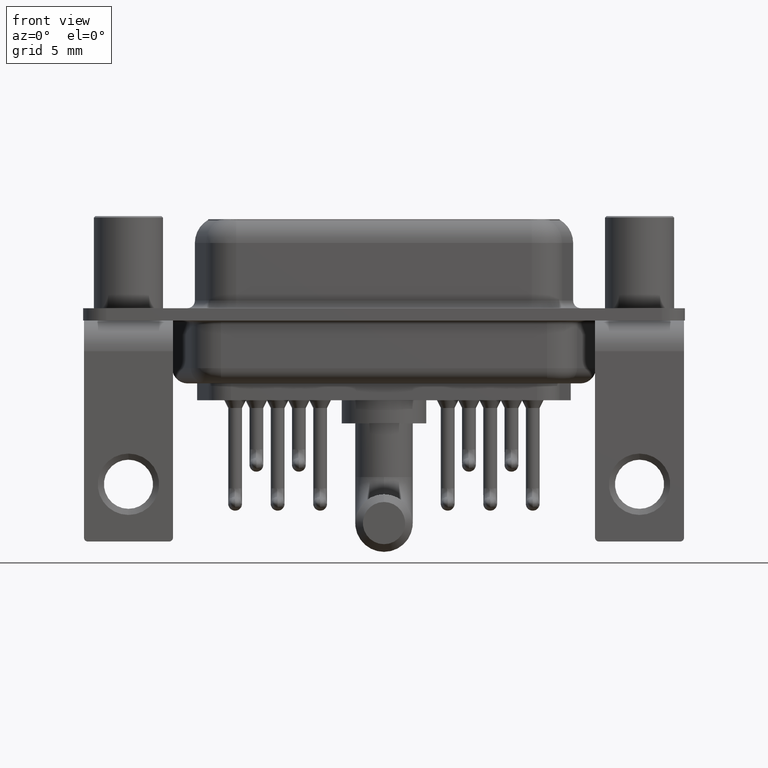
[diagram: clean part render]
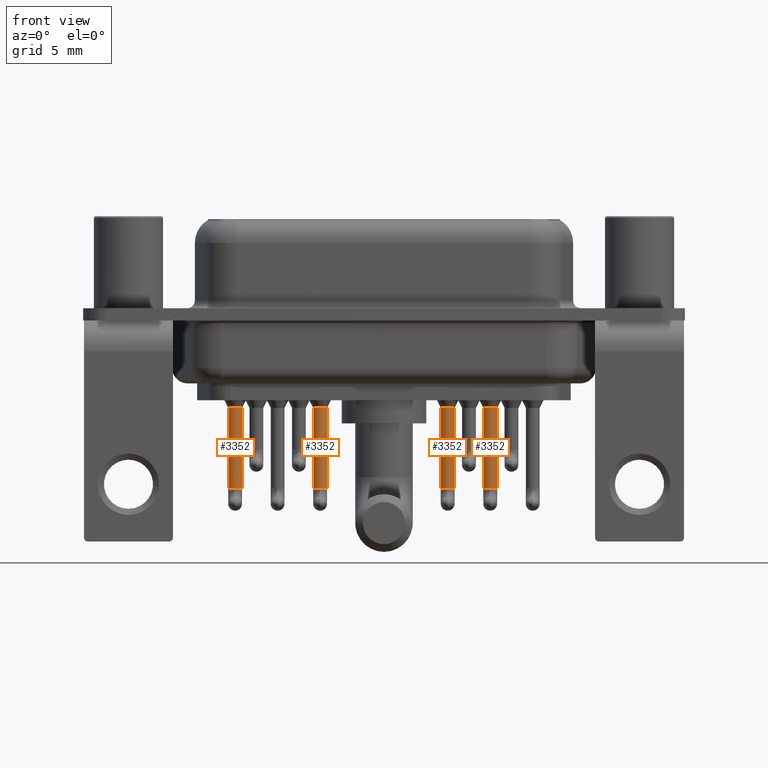
[diagram: same view with one multi-face feature highlighted, each face labeled with its STEP entity id]
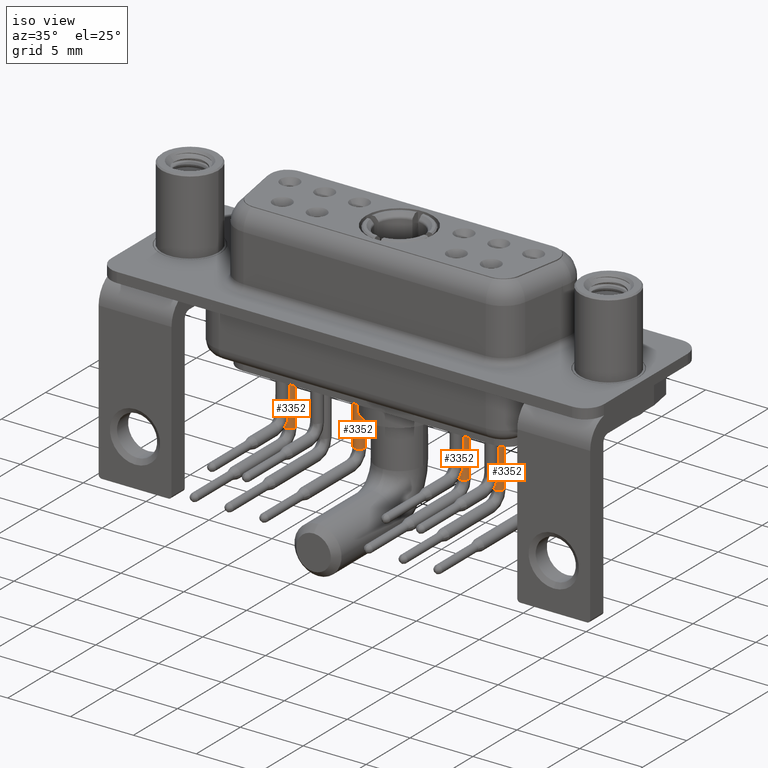
[diagram: same view with one multi-face feature highlighted, each face labeled with its STEP entity id]
A machine part, front view. The highlighted faces form ONE feature: a constant-radius fillet chain: 4 tangent blend faces with common blend radius 0.45 mm. The faces share edges in the B-rep.
A second angle (iso view) of the same feature is appended — it is thin or edge-on in the first view.
Their STEP definitions:
[1] entity #3352 (Cylinder):
#169 = DIRECTION ( 'NONE',  ( 0.0000000000000000000, 0.0000000000000000000, -1.000000000000000000 ) ) ;
#1043 = EDGE_CURVE ( 'NONE', #1865, #15775, #3262, .T. ) ;
#1186 = CARTESIAN_POINT ( 'NONE',  ( -0.4499999999999999001, 0.0000000000000000000, -9.039999999999894342 ) ) ;
#1358 = CARTESIAN_POINT ( 'NONE',  ( 0.4499999999999999001, 5.510910596163087707E-17, -9.039999999999894342 ) ) ;
#1631 = DIRECTION ( 'NONE',  ( 0.0000000000000000000, 0.0000000000000000000, -1.000000000000000000 ) ) ;
#1836 = VERTEX_POINT ( 'NONE', #12975 ) ;
#1865 = VERTEX_POINT ( 'NONE', #14897 ) ;
#2528 = ORIENTED_EDGE ( 'NONE', *, *, #3627, .F. ) ;
#2713 = CIRCLE ( 'NONE', #7478, 0.4499999999995887290 ) ;
#2871 = DIRECTION ( 'NONE',  ( 0.0000000000000000000, 0.0000000000000000000, -1.000000000000000000 ) ) ;
#3252 = ORIENTED_EDGE ( 'NONE', *, *, #13223, .T. ) ;
#3262 = LINE ( 'NONE', #16345, #5468 ) ;
#3352 = ADVANCED_FACE ( 'NONE', ( #17988 ), #13089, .T. ) ;
#3528 = DIRECTION ( 'NONE',  ( 0.0000000000000000000, 0.0000000000000000000, -1.000000000000000000 ) ) ;
#3627 = EDGE_CURVE ( 'NONE', #5407, #1836, #3800, .T. ) ;
#3800 = CIRCLE ( 'NONE', #12371, 0.4499999999999998446 ) ;
#4595 = CARTESIAN_POINT ( 'NONE',  ( 0.0000000000000000000, 0.0000000000000000000, -9.039999999999894342 ) ) ;
#4596 = ORIENTED_EDGE ( 'NONE', *, *, #10316, .F. ) ;
#4695 = AXIS2_PLACEMENT_3D ( 'NONE', #4595, #169, #10078 ) ;
#5407 = VERTEX_POINT ( 'NONE', #1358 ) ;
#5468 = VECTOR ( 'NONE', #1631, 1000.000000000000000 ) ;
#6354 = CARTESIAN_POINT ( 'NONE',  ( 0.4499999999995887290, 5.510910596160564584E-17, -3.799999999999888356 ) ) ;
#6469 = DIRECTION ( 'NONE',  ( -0.0000000000000000000, -0.0000000000000000000, -1.000000000000000000 ) ) ;
#6904 = CARTESIAN_POINT ( 'NONE',  ( 0.4499999999999999001, 5.510910596163087707E-17, -3.800000000000004707 ) ) ;
#7478 = AXIS2_PLACEMENT_3D ( 'NONE', #14645, #6469, #18050 ) ;
#8026 = DIRECTION ( 'NONE',  ( -1.000000000000000000, 0.0000000000000000000, 0.0000000000000000000 ) ) ;
#8261 = ORIENTED_EDGE ( 'NONE', *, *, #1043, .T. ) ;
#8300 = DIRECTION ( 'NONE',  ( 0.0000000000000000000, 0.0000000000000000000, -1.000000000000000000 ) ) ;
#9275 = AXIS2_PLACEMENT_3D ( 'NONE', #17779, #3528, #8026 ) ;
#9309 = VERTEX_POINT ( 'NONE', #6354 ) ;
#9730 = ORIENTED_EDGE ( 'NONE', *, *, #14402, .F. ) ;
#10078 = DIRECTION ( 'NONE',  ( 0.0000000000000000000, 1.000000000000000000, 0.0000000000000000000 ) ) ;
#10316 = EDGE_CURVE ( 'NONE', #1836, #15775, #13956, .T. ) ;
#12371 = AXIS2_PLACEMENT_3D ( 'NONE', #12752, #2871, #20436 ) ;
#12752 = CARTESIAN_POINT ( 'NONE',  ( 0.0000000000000000000, 0.0000000000000000000, -9.039999999999894342 ) ) ;
#12975 = CARTESIAN_POINT ( 'NONE',  ( -0.02825573378818880058, -0.4491120277927221904, -9.039999999999894342 ) ) ;
#13069 = VECTOR ( 'NONE', #8300, 1000.000000000000000 ) ;
#13089 = CYLINDRICAL_SURFACE ( 'NONE', #9275, 0.4499999999999999001 ) ;
#13223 = EDGE_CURVE ( 'NONE', #9309, #1865, #2713, .T. ) ;
#13956 = CIRCLE ( 'NONE', #4695, 0.4499999999999998446 ) ;
#14402 = EDGE_CURVE ( 'NONE', #9309, #5407, #16358, .T. ) ;
#14645 = CARTESIAN_POINT ( 'NONE',  ( 0.0000000000000000000, 0.0000000000000000000, -3.799999999999888356 ) ) ;
#14897 = CARTESIAN_POINT ( 'NONE',  ( -0.4499999999995887290, 0.0000000000000000000, -3.799999999999888356 ) ) ;
#15775 = VERTEX_POINT ( 'NONE', #1186 ) ;
#16345 = CARTESIAN_POINT ( 'NONE',  ( -0.4499999999999999001, 0.0000000000000000000, -3.800000000000004707 ) ) ;
#16358 = LINE ( 'NONE', #6904, #13069 ) ;
#17779 = CARTESIAN_POINT ( 'NONE',  ( 0.0000000000000000000, 0.0000000000000000000, -3.800000000000004707 ) ) ;
#17988 = FACE_OUTER_BOUND ( 'NONE', #18694, .T. ) ;
#18050 = DIRECTION ( 'NONE',  ( 0.0000000000000000000, 1.000000000000000000, 0.0000000000000000000 ) ) ;
#18694 = EDGE_LOOP ( 'NONE', ( #9730, #3252, #8261, #4596, #2528 ) ) ;
#20436 = DIRECTION ( 'NONE',  ( 0.0000000000000000000, 1.000000000000000000, 0.0000000000000000000 ) ) ;
[2] entity #3352 (Cylinder):
#169 = DIRECTION ( 'NONE',  ( 0.0000000000000000000, 0.0000000000000000000, -1.000000000000000000 ) ) ;
#1043 = EDGE_CURVE ( 'NONE', #1865, #15775, #3262, .T. ) ;
#1186 = CARTESIAN_POINT ( 'NONE',  ( -0.4499999999999999001, 0.0000000000000000000, -9.039999999999894342 ) ) ;
#1358 = CARTESIAN_POINT ( 'NONE',  ( 0.4499999999999999001, 5.510910596163087707E-17, -9.039999999999894342 ) ) ;
#1631 = DIRECTION ( 'NONE',  ( 0.0000000000000000000, 0.0000000000000000000, -1.000000000000000000 ) ) ;
#1836 = VERTEX_POINT ( 'NONE', #12975 ) ;
#1865 = VERTEX_POINT ( 'NONE', #14897 ) ;
#2528 = ORIENTED_EDGE ( 'NONE', *, *, #3627, .F. ) ;
#2713 = CIRCLE ( 'NONE', #7478, 0.4499999999995887290 ) ;
#2871 = DIRECTION ( 'NONE',  ( 0.0000000000000000000, 0.0000000000000000000, -1.000000000000000000 ) ) ;
#3252 = ORIENTED_EDGE ( 'NONE', *, *, #13223, .T. ) ;
#3262 = LINE ( 'NONE', #16345, #5468 ) ;
#3352 = ADVANCED_FACE ( 'NONE', ( #17988 ), #13089, .T. ) ;
#3528 = DIRECTION ( 'NONE',  ( 0.0000000000000000000, 0.0000000000000000000, -1.000000000000000000 ) ) ;
#3627 = EDGE_CURVE ( 'NONE', #5407, #1836, #3800, .T. ) ;
#3800 = CIRCLE ( 'NONE', #12371, 0.4499999999999998446 ) ;
#4595 = CARTESIAN_POINT ( 'NONE',  ( 0.0000000000000000000, 0.0000000000000000000, -9.039999999999894342 ) ) ;
#4596 = ORIENTED_EDGE ( 'NONE', *, *, #10316, .F. ) ;
#4695 = AXIS2_PLACEMENT_3D ( 'NONE', #4595, #169, #10078 ) ;
#5407 = VERTEX_POINT ( 'NONE', #1358 ) ;
#5468 = VECTOR ( 'NONE', #1631, 1000.000000000000000 ) ;
#6354 = CARTESIAN_POINT ( 'NONE',  ( 0.4499999999995887290, 5.510910596160564584E-17, -3.799999999999888356 ) ) ;
#6469 = DIRECTION ( 'NONE',  ( -0.0000000000000000000, -0.0000000000000000000, -1.000000000000000000 ) ) ;
#6904 = CARTESIAN_POINT ( 'NONE',  ( 0.4499999999999999001, 5.510910596163087707E-17, -3.800000000000004707 ) ) ;
#7478 = AXIS2_PLACEMENT_3D ( 'NONE', #14645, #6469, #18050 ) ;
#8026 = DIRECTION ( 'NONE',  ( -1.000000000000000000, 0.0000000000000000000, 0.0000000000000000000 ) ) ;
#8261 = ORIENTED_EDGE ( 'NONE', *, *, #1043, .T. ) ;
#8300 = DIRECTION ( 'NONE',  ( 0.0000000000000000000, 0.0000000000000000000, -1.000000000000000000 ) ) ;
#9275 = AXIS2_PLACEMENT_3D ( 'NONE', #17779, #3528, #8026 ) ;
#9309 = VERTEX_POINT ( 'NONE', #6354 ) ;
#9730 = ORIENTED_EDGE ( 'NONE', *, *, #14402, .F. ) ;
#10078 = DIRECTION ( 'NONE',  ( 0.0000000000000000000, 1.000000000000000000, 0.0000000000000000000 ) ) ;
#10316 = EDGE_CURVE ( 'NONE', #1836, #15775, #13956, .T. ) ;
#12371 = AXIS2_PLACEMENT_3D ( 'NONE', #12752, #2871, #20436 ) ;
#12752 = CARTESIAN_POINT ( 'NONE',  ( 0.0000000000000000000, 0.0000000000000000000, -9.039999999999894342 ) ) ;
#12975 = CARTESIAN_POINT ( 'NONE',  ( -0.02825573378818880058, -0.4491120277927221904, -9.039999999999894342 ) ) ;
#13069 = VECTOR ( 'NONE', #8300, 1000.000000000000000 ) ;
#13089 = CYLINDRICAL_SURFACE ( 'NONE', #9275, 0.4499999999999999001 ) ;
#13223 = EDGE_CURVE ( 'NONE', #9309, #1865, #2713, .T. ) ;
#13956 = CIRCLE ( 'NONE', #4695, 0.4499999999999998446 ) ;
#14402 = EDGE_CURVE ( 'NONE', #9309, #5407, #16358, .T. ) ;
#14645 = CARTESIAN_POINT ( 'NONE',  ( 0.0000000000000000000, 0.0000000000000000000, -3.799999999999888356 ) ) ;
#14897 = CARTESIAN_POINT ( 'NONE',  ( -0.4499999999995887290, 0.0000000000000000000, -3.799999999999888356 ) ) ;
#15775 = VERTEX_POINT ( 'NONE', #1186 ) ;
#16345 = CARTESIAN_POINT ( 'NONE',  ( -0.4499999999999999001, 0.0000000000000000000, -3.800000000000004707 ) ) ;
#16358 = LINE ( 'NONE', #6904, #13069 ) ;
#17779 = CARTESIAN_POINT ( 'NONE',  ( 0.0000000000000000000, 0.0000000000000000000, -3.800000000000004707 ) ) ;
#17988 = FACE_OUTER_BOUND ( 'NONE', #18694, .T. ) ;
#18050 = DIRECTION ( 'NONE',  ( 0.0000000000000000000, 1.000000000000000000, 0.0000000000000000000 ) ) ;
#18694 = EDGE_LOOP ( 'NONE', ( #9730, #3252, #8261, #4596, #2528 ) ) ;
#20436 = DIRECTION ( 'NONE',  ( 0.0000000000000000000, 1.000000000000000000, 0.0000000000000000000 ) ) ;
[3] entity #3352 (Cylinder):
#169 = DIRECTION ( 'NONE',  ( 0.0000000000000000000, 0.0000000000000000000, -1.000000000000000000 ) ) ;
#1043 = EDGE_CURVE ( 'NONE', #1865, #15775, #3262, .T. ) ;
#1186 = CARTESIAN_POINT ( 'NONE',  ( -0.4499999999999999001, 0.0000000000000000000, -9.039999999999894342 ) ) ;
#1358 = CARTESIAN_POINT ( 'NONE',  ( 0.4499999999999999001, 5.510910596163087707E-17, -9.039999999999894342 ) ) ;
#1631 = DIRECTION ( 'NONE',  ( 0.0000000000000000000, 0.0000000000000000000, -1.000000000000000000 ) ) ;
#1836 = VERTEX_POINT ( 'NONE', #12975 ) ;
#1865 = VERTEX_POINT ( 'NONE', #14897 ) ;
#2528 = ORIENTED_EDGE ( 'NONE', *, *, #3627, .F. ) ;
#2713 = CIRCLE ( 'NONE', #7478, 0.4499999999995887290 ) ;
#2871 = DIRECTION ( 'NONE',  ( 0.0000000000000000000, 0.0000000000000000000, -1.000000000000000000 ) ) ;
#3252 = ORIENTED_EDGE ( 'NONE', *, *, #13223, .T. ) ;
#3262 = LINE ( 'NONE', #16345, #5468 ) ;
#3352 = ADVANCED_FACE ( 'NONE', ( #17988 ), #13089, .T. ) ;
#3528 = DIRECTION ( 'NONE',  ( 0.0000000000000000000, 0.0000000000000000000, -1.000000000000000000 ) ) ;
#3627 = EDGE_CURVE ( 'NONE', #5407, #1836, #3800, .T. ) ;
#3800 = CIRCLE ( 'NONE', #12371, 0.4499999999999998446 ) ;
#4595 = CARTESIAN_POINT ( 'NONE',  ( 0.0000000000000000000, 0.0000000000000000000, -9.039999999999894342 ) ) ;
#4596 = ORIENTED_EDGE ( 'NONE', *, *, #10316, .F. ) ;
#4695 = AXIS2_PLACEMENT_3D ( 'NONE', #4595, #169, #10078 ) ;
#5407 = VERTEX_POINT ( 'NONE', #1358 ) ;
#5468 = VECTOR ( 'NONE', #1631, 1000.000000000000000 ) ;
#6354 = CARTESIAN_POINT ( 'NONE',  ( 0.4499999999995887290, 5.510910596160564584E-17, -3.799999999999888356 ) ) ;
#6469 = DIRECTION ( 'NONE',  ( -0.0000000000000000000, -0.0000000000000000000, -1.000000000000000000 ) ) ;
#6904 = CARTESIAN_POINT ( 'NONE',  ( 0.4499999999999999001, 5.510910596163087707E-17, -3.800000000000004707 ) ) ;
#7478 = AXIS2_PLACEMENT_3D ( 'NONE', #14645, #6469, #18050 ) ;
#8026 = DIRECTION ( 'NONE',  ( -1.000000000000000000, 0.0000000000000000000, 0.0000000000000000000 ) ) ;
#8261 = ORIENTED_EDGE ( 'NONE', *, *, #1043, .T. ) ;
#8300 = DIRECTION ( 'NONE',  ( 0.0000000000000000000, 0.0000000000000000000, -1.000000000000000000 ) ) ;
#9275 = AXIS2_PLACEMENT_3D ( 'NONE', #17779, #3528, #8026 ) ;
#9309 = VERTEX_POINT ( 'NONE', #6354 ) ;
#9730 = ORIENTED_EDGE ( 'NONE', *, *, #14402, .F. ) ;
#10078 = DIRECTION ( 'NONE',  ( 0.0000000000000000000, 1.000000000000000000, 0.0000000000000000000 ) ) ;
#10316 = EDGE_CURVE ( 'NONE', #1836, #15775, #13956, .T. ) ;
#12371 = AXIS2_PLACEMENT_3D ( 'NONE', #12752, #2871, #20436 ) ;
#12752 = CARTESIAN_POINT ( 'NONE',  ( 0.0000000000000000000, 0.0000000000000000000, -9.039999999999894342 ) ) ;
#12975 = CARTESIAN_POINT ( 'NONE',  ( -0.02825573378818880058, -0.4491120277927221904, -9.039999999999894342 ) ) ;
#13069 = VECTOR ( 'NONE', #8300, 1000.000000000000000 ) ;
#13089 = CYLINDRICAL_SURFACE ( 'NONE', #9275, 0.4499999999999999001 ) ;
#13223 = EDGE_CURVE ( 'NONE', #9309, #1865, #2713, .T. ) ;
#13956 = CIRCLE ( 'NONE', #4695, 0.4499999999999998446 ) ;
#14402 = EDGE_CURVE ( 'NONE', #9309, #5407, #16358, .T. ) ;
#14645 = CARTESIAN_POINT ( 'NONE',  ( 0.0000000000000000000, 0.0000000000000000000, -3.799999999999888356 ) ) ;
#14897 = CARTESIAN_POINT ( 'NONE',  ( -0.4499999999995887290, 0.0000000000000000000, -3.799999999999888356 ) ) ;
#15775 = VERTEX_POINT ( 'NONE', #1186 ) ;
#16345 = CARTESIAN_POINT ( 'NONE',  ( -0.4499999999999999001, 0.0000000000000000000, -3.800000000000004707 ) ) ;
#16358 = LINE ( 'NONE', #6904, #13069 ) ;
#17779 = CARTESIAN_POINT ( 'NONE',  ( 0.0000000000000000000, 0.0000000000000000000, -3.800000000000004707 ) ) ;
#17988 = FACE_OUTER_BOUND ( 'NONE', #18694, .T. ) ;
#18050 = DIRECTION ( 'NONE',  ( 0.0000000000000000000, 1.000000000000000000, 0.0000000000000000000 ) ) ;
#18694 = EDGE_LOOP ( 'NONE', ( #9730, #3252, #8261, #4596, #2528 ) ) ;
#20436 = DIRECTION ( 'NONE',  ( 0.0000000000000000000, 1.000000000000000000, 0.0000000000000000000 ) ) ;
[4] entity #3352 (Cylinder):
#169 = DIRECTION ( 'NONE',  ( 0.0000000000000000000, 0.0000000000000000000, -1.000000000000000000 ) ) ;
#1043 = EDGE_CURVE ( 'NONE', #1865, #15775, #3262, .T. ) ;
#1186 = CARTESIAN_POINT ( 'NONE',  ( -0.4499999999999999001, 0.0000000000000000000, -9.039999999999894342 ) ) ;
#1358 = CARTESIAN_POINT ( 'NONE',  ( 0.4499999999999999001, 5.510910596163087707E-17, -9.039999999999894342 ) ) ;
#1631 = DIRECTION ( 'NONE',  ( 0.0000000000000000000, 0.0000000000000000000, -1.000000000000000000 ) ) ;
#1836 = VERTEX_POINT ( 'NONE', #12975 ) ;
#1865 = VERTEX_POINT ( 'NONE', #14897 ) ;
#2528 = ORIENTED_EDGE ( 'NONE', *, *, #3627, .F. ) ;
#2713 = CIRCLE ( 'NONE', #7478, 0.4499999999995887290 ) ;
#2871 = DIRECTION ( 'NONE',  ( 0.0000000000000000000, 0.0000000000000000000, -1.000000000000000000 ) ) ;
#3252 = ORIENTED_EDGE ( 'NONE', *, *, #13223, .T. ) ;
#3262 = LINE ( 'NONE', #16345, #5468 ) ;
#3352 = ADVANCED_FACE ( 'NONE', ( #17988 ), #13089, .T. ) ;
#3528 = DIRECTION ( 'NONE',  ( 0.0000000000000000000, 0.0000000000000000000, -1.000000000000000000 ) ) ;
#3627 = EDGE_CURVE ( 'NONE', #5407, #1836, #3800, .T. ) ;
#3800 = CIRCLE ( 'NONE', #12371, 0.4499999999999998446 ) ;
#4595 = CARTESIAN_POINT ( 'NONE',  ( 0.0000000000000000000, 0.0000000000000000000, -9.039999999999894342 ) ) ;
#4596 = ORIENTED_EDGE ( 'NONE', *, *, #10316, .F. ) ;
#4695 = AXIS2_PLACEMENT_3D ( 'NONE', #4595, #169, #10078 ) ;
#5407 = VERTEX_POINT ( 'NONE', #1358 ) ;
#5468 = VECTOR ( 'NONE', #1631, 1000.000000000000000 ) ;
#6354 = CARTESIAN_POINT ( 'NONE',  ( 0.4499999999995887290, 5.510910596160564584E-17, -3.799999999999888356 ) ) ;
#6469 = DIRECTION ( 'NONE',  ( -0.0000000000000000000, -0.0000000000000000000, -1.000000000000000000 ) ) ;
#6904 = CARTESIAN_POINT ( 'NONE',  ( 0.4499999999999999001, 5.510910596163087707E-17, -3.800000000000004707 ) ) ;
#7478 = AXIS2_PLACEMENT_3D ( 'NONE', #14645, #6469, #18050 ) ;
#8026 = DIRECTION ( 'NONE',  ( -1.000000000000000000, 0.0000000000000000000, 0.0000000000000000000 ) ) ;
#8261 = ORIENTED_EDGE ( 'NONE', *, *, #1043, .T. ) ;
#8300 = DIRECTION ( 'NONE',  ( 0.0000000000000000000, 0.0000000000000000000, -1.000000000000000000 ) ) ;
#9275 = AXIS2_PLACEMENT_3D ( 'NONE', #17779, #3528, #8026 ) ;
#9309 = VERTEX_POINT ( 'NONE', #6354 ) ;
#9730 = ORIENTED_EDGE ( 'NONE', *, *, #14402, .F. ) ;
#10078 = DIRECTION ( 'NONE',  ( 0.0000000000000000000, 1.000000000000000000, 0.0000000000000000000 ) ) ;
#10316 = EDGE_CURVE ( 'NONE', #1836, #15775, #13956, .T. ) ;
#12371 = AXIS2_PLACEMENT_3D ( 'NONE', #12752, #2871, #20436 ) ;
#12752 = CARTESIAN_POINT ( 'NONE',  ( 0.0000000000000000000, 0.0000000000000000000, -9.039999999999894342 ) ) ;
#12975 = CARTESIAN_POINT ( 'NONE',  ( -0.02825573378818880058, -0.4491120277927221904, -9.039999999999894342 ) ) ;
#13069 = VECTOR ( 'NONE', #8300, 1000.000000000000000 ) ;
#13089 = CYLINDRICAL_SURFACE ( 'NONE', #9275, 0.4499999999999999001 ) ;
#13223 = EDGE_CURVE ( 'NONE', #9309, #1865, #2713, .T. ) ;
#13956 = CIRCLE ( 'NONE', #4695, 0.4499999999999998446 ) ;
#14402 = EDGE_CURVE ( 'NONE', #9309, #5407, #16358, .T. ) ;
#14645 = CARTESIAN_POINT ( 'NONE',  ( 0.0000000000000000000, 0.0000000000000000000, -3.799999999999888356 ) ) ;
#14897 = CARTESIAN_POINT ( 'NONE',  ( -0.4499999999995887290, 0.0000000000000000000, -3.799999999999888356 ) ) ;
#15775 = VERTEX_POINT ( 'NONE', #1186 ) ;
#16345 = CARTESIAN_POINT ( 'NONE',  ( -0.4499999999999999001, 0.0000000000000000000, -3.800000000000004707 ) ) ;
#16358 = LINE ( 'NONE', #6904, #13069 ) ;
#17779 = CARTESIAN_POINT ( 'NONE',  ( 0.0000000000000000000, 0.0000000000000000000, -3.800000000000004707 ) ) ;
#17988 = FACE_OUTER_BOUND ( 'NONE', #18694, .T. ) ;
#18050 = DIRECTION ( 'NONE',  ( 0.0000000000000000000, 1.000000000000000000, 0.0000000000000000000 ) ) ;
#18694 = EDGE_LOOP ( 'NONE', ( #9730, #3252, #8261, #4596, #2528 ) ) ;
#20436 = DIRECTION ( 'NONE',  ( 0.0000000000000000000, 1.000000000000000000, 0.0000000000000000000 ) ) ;